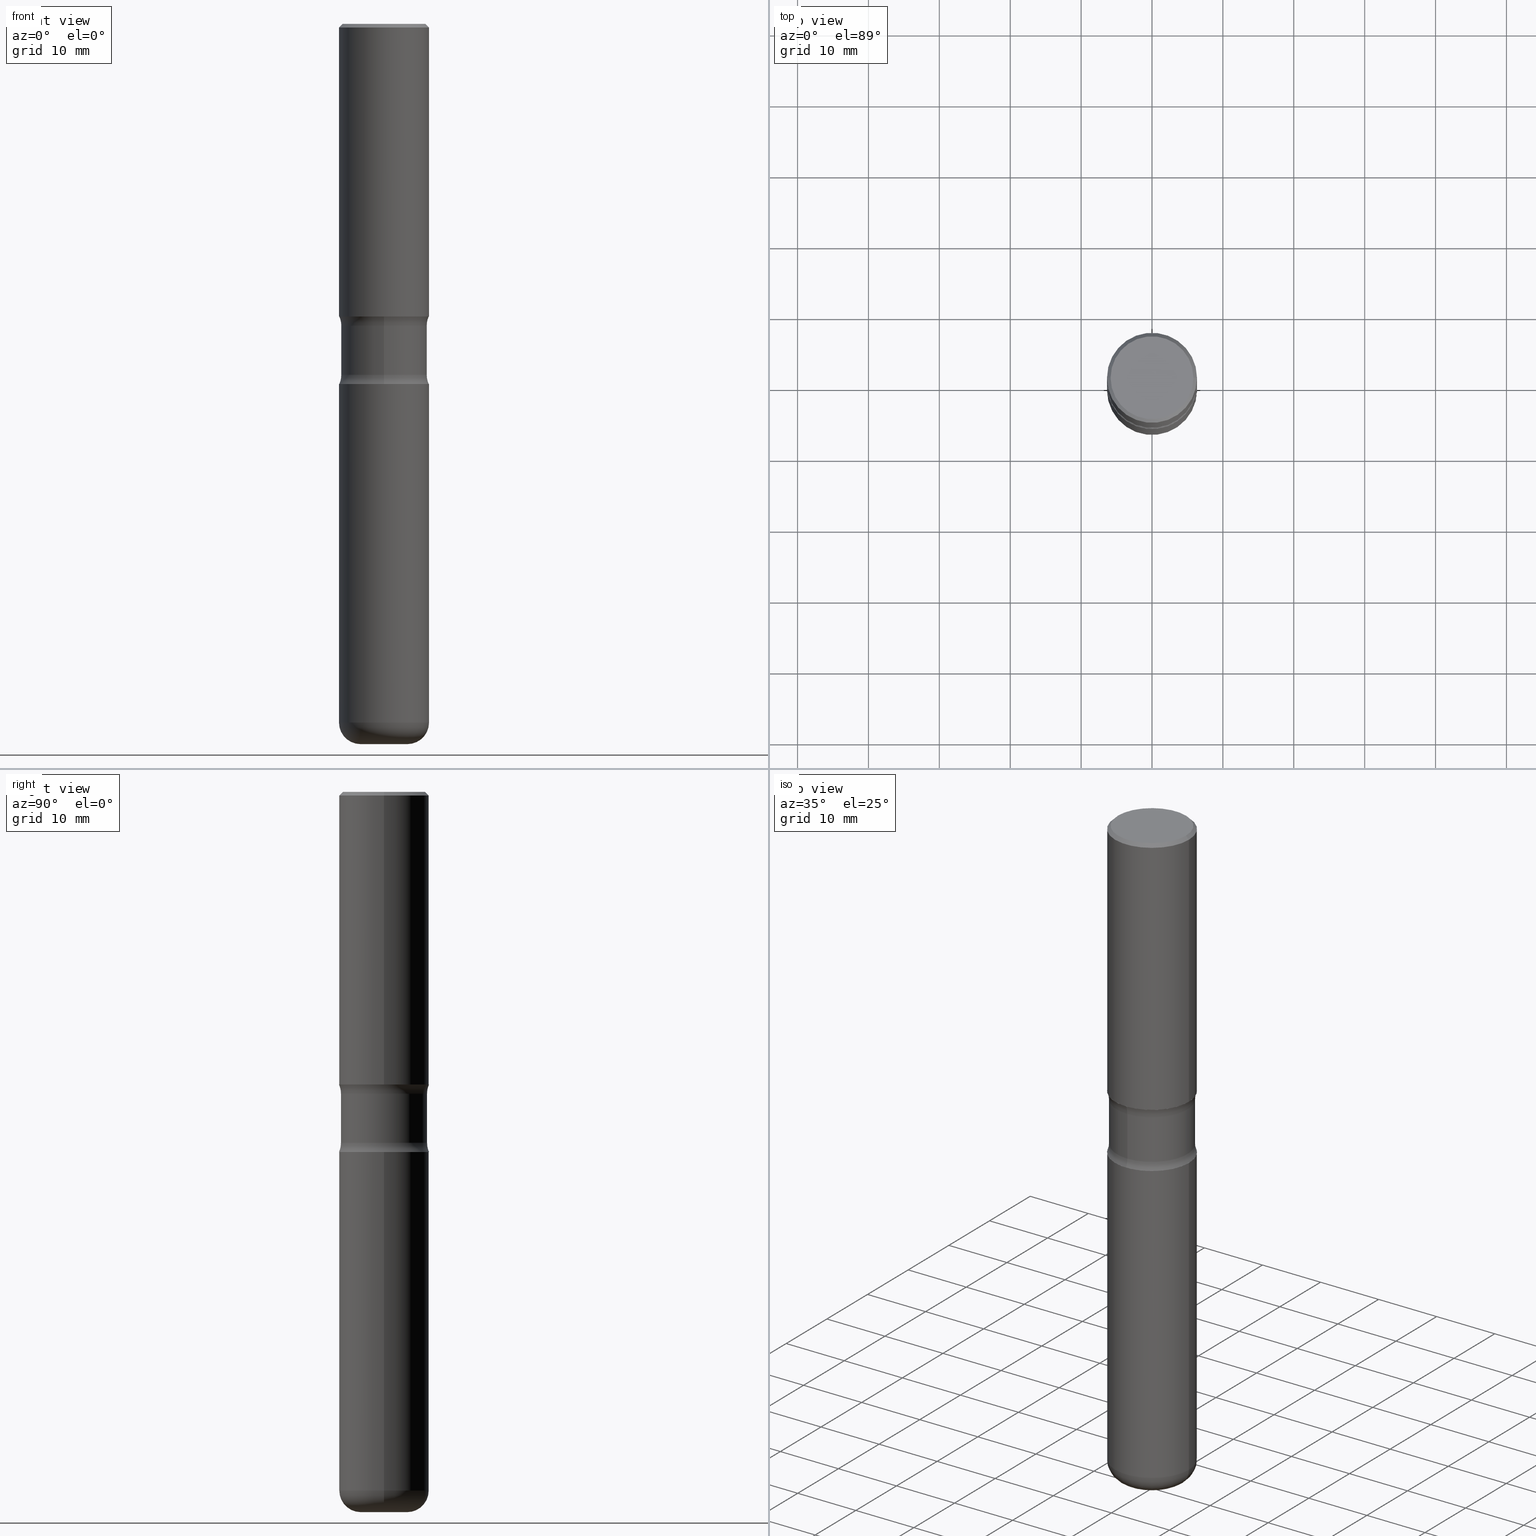
[diagram: canonical four-view strip — front | top / right | iso, engineering-drawing reading convention]
A machine part, canonical four-view strip (front | top / right | iso — engineering-drawing reading convention). The complete STEP part file that produces these views, byte-faithful:
ISO-10303-21;
HEADER;
FILE_DESCRIPTION (( 'STEP AP203' ),
    '1' );
FILE_NAME ('34023.STEP',
    '2024-03-01T22:58:10',
    ( '' ),
    ( '' ),
    'SwSTEP 2.0',
    'SolidWorks 2023',
    '' );
FILE_SCHEMA (( 'CONFIG_CONTROL_DESIGN' ));
ENDSEC;

DATA;
#1 = PERSON_AND_ORGANIZATION ( #354, #500 ) ;
#2 = EDGE_LOOP ( 'NONE', ( #245, #204, #390, #119 ) ) ;
#3 = AXIS2_PLACEMENT_3D ( 'NONE', #468, #429, #332 ) ;
#4 = DESIGN_CONTEXT ( 'detailed design', #397, 'design' ) ;
#5 = DIRECTION ( 'NONE',  ( -0.7071067811865473507, 2.468850131082255088E-15, -0.7071067811865476838 ) ) ;
#6 = DIRECTION ( 'NONE',  ( 2.475275669592745562E-29, -3.448796213942141316E-15, -1.000000000000000000 ) ) ;
#7 = FACE_OUTER_BOUND ( 'NONE', #340, .T. ) ;
#8 = CIRCLE ( 'NONE', #77, 0.2500000000000005551 ) ;
#9 = CARTESIAN_POINT ( 'NONE',  ( 9.841488951555764877E-29, -1.388055510557057537E-14, -4.000000000000000888 ) ) ;
#10 = VECTOR ( 'NONE', #143, 39.37007874015748143 ) ;
#11 = AXIS2_PLACEMENT_3D ( 'NONE', #319, #61, #360 ) ;
#12 = DATE_AND_TIME ( #493, #426 ) ;
#13 = LINE ( 'NONE', #488, #369 ) ;
#14 = ORIENTED_EDGE ( 'NONE', *, *, #162, .F. ) ;
#15 = FACE_OUTER_BOUND ( 'NONE', #404, .T. ) ;
#16 = DIRECTION ( 'NONE',  ( 1.000000000000000000, -6.982962677686268288E-15, 0.000000000000000000 ) ) ;
#17 = EDGE_LOOP ( 'NONE', ( #151, #517, #329, #472 ) ) ;
#18 = AXIS2_PLACEMENT_3D ( 'NONE', #412, #145, #366 ) ;
#19 = CC_DESIGN_APPROVAL ( #141, ( #261 ) ) ;
#20 = CARTESIAN_POINT ( 'NONE',  ( 4.890937612370306439E-31, -6.982962677686338448E-17, -0.02000000000000013572 ) ) ;
#21 = ORIENTED_EDGE ( 'NONE', *, *, #57, .T. ) ;
#22 = PLANE ( 'NONE',  #190 ) ;
#23 = ADVANCED_BREP_SHAPE_REPRESENTATION ( '34023', ( #186, #199, #191, #398 ), #538 ) ;
#24 = DIRECTION ( 'NONE',  ( 1.000000000000000000, -6.982962677686272233E-15, 0.000000000000000000 ) ) ;
#25 = LINE ( 'NONE', #311, #182 ) ;
#26 = ORIENTED_EDGE ( 'NONE', *, *, #124, .T. ) ;
#27 = CC_DESIGN_PERSON_AND_ORGANIZATION_ASSIGNMENT ( #92, #351, ( #328 ) ) ;
#28 = DIRECTION ( 'NONE',  ( 7.105427357601001859E-15, 1.000000000000000000, -3.491481338843145583E-15 ) ) ;
#29 = FACE_OUTER_BOUND ( 'NONE', #115, .T. ) ;
#30 = EDGE_LOOP ( 'NONE', ( #194, #257 ) ) ;
#31 = ORIENTED_EDGE ( 'NONE', *, *, #86, .T. ) ;
#32 = CIRCLE ( 'NONE', #545, 0.2500000000000004996 ) ;
#33 = LINE ( 'NONE', #71, #201 ) ;
#34 = ORIENTED_EDGE ( 'NONE', *, *, #271, .F. ) ;
#35 = APPROVAL_PERSON_ORGANIZATION ( #389, #415, #44 ) ;
#36 = DIRECTION ( 'NONE',  ( -2.445468806185136597E-29, 3.491481338843145583E-15, 1.000000000000000000 ) ) ;
#37 = ORIENTED_EDGE ( 'NONE', *, *, #228, .F. ) ;
#38 = ORIENTED_EDGE ( 'NONE', *, *, #402, .T. ) ;
#39 = APPROVAL_DATE_TIME ( #431, #141 ) ;
#40 = DIRECTION ( 'NONE',  ( 2.445468806185136597E-29, -3.491481338843145583E-15, -1.000000000000000000 ) ) ;
#41 = DIRECTION ( 'NONE',  ( 2.445468806185136597E-29, -3.491481338843145583E-15, -1.000000000000000000 ) ) ;
#42 = EDGE_LOOP ( 'NONE', ( #428, #31, #238, #430 ) ) ;
#43 = CIRCLE ( 'NONE', #359, 0.2500000000000004996 ) ;
#44 = APPROVAL_ROLE ( '' ) ;
#45 = AXIS2_PLACEMENT_3D ( 'NONE', #498, #528, #127 ) ;
#46 = CARTESIAN_POINT ( 'NONE',  ( -0.2500000000000003331, 1.675911042644705746E-15, -0.02000000000000013572 ) ) ;
#47 = PLANE ( 'NONE',  #378 ) ;
#48 = PERSON_AND_ORGANIZATION ( #354, #500 ) ;
#49 = DIRECTION ( 'NONE',  ( -2.445468806185136877E-29, 3.491481338843145188E-15, 1.000000000000000000 ) ) ;
#50 = EDGE_CURVE ( 'NONE', #512, #364, #8, .T. ) ;
#51 = CALENDAR_DATE ( 2024, 1, 3 ) ;
#52 = ORIENTED_EDGE ( 'NONE', *, *, #535, .T. ) ;
#53 = DIRECTION ( 'NONE',  ( 1.000000000000000000, -6.982962677686266711E-15, 0.000000000000000000 ) ) ;
#54 = DIRECTION ( 'NONE',  ( -1.000000000000000000, 6.982962677686265922E-15, -4.883557194083112340E-29 ) ) ;
#55 = CARTESIAN_POINT ( 'NONE',  ( 0.2300000000000002320, -1.681434332853601180E-15, -3.414809992079179628E-17 ) ) ;
#56 = CIRCLE ( 'NONE', #490, 0.1250000000000000555 ) ;
#57 = EDGE_CURVE ( 'NONE', #361, #64, #43, .T. ) ;
#58 = FACE_OUTER_BOUND ( 'NONE', #30, .T. ) ;
#59 = DIRECTION ( 'NONE',  ( 1.000000000000000000, -6.982962677686269866E-15, 0.000000000000000000 ) ) ;
#60 = ORIENTED_EDGE ( 'NONE', *, *, #72, .T. ) ;
#61 = DIRECTION ( 'NONE',  ( -2.445468806185136597E-29, 3.491481338843145583E-15, 1.000000000000000000 ) ) ;
#62 = AXIS2_PLACEMENT_3D ( 'NONE', #89, #54, #308 ) ;
#63 = AXIS2_PLACEMENT_3D ( 'NONE', #206, #36, #555 ) ;
#64 = VERTEX_POINT ( 'NONE', #154 ) ;
#65 = PLANE ( 'NONE',  #219 ) ;
#66 = FACE_OUTER_BOUND ( 'NONE', #217, .T. ) ;
#67 = ORIENTED_EDGE ( 'NONE', *, *, #437, .F. ) ;
#68 = DIRECTION ( 'NONE',  ( 2.475275669592745842E-29, -3.448796213942141316E-15, -1.000000000000000000 ) ) ;
#69 = CLOSED_SHELL ( 'NONE', ( #522, #284, #134, #435, #318, #539 ) ) ;
#70 = TOROIDAL_SURFACE ( 'NONE', #45, 0.1300000000000006151, 0.1199999999999999123 ) ;
#71 = CARTESIAN_POINT ( 'NONE',  ( -1.639659021467298523E-15, -0.2390000000000140346, -3.999999999999999556 ) ) ;
#72 = EDGE_CURVE ( 'NONE', #207, #510, #75, .T. ) ;
#73 = CARTESIAN_POINT ( 'NONE',  ( 0.000000000000000000, 0.000000000000000000, 0.000000000000000000 ) ) ;
#74 = ORIENTED_EDGE ( 'NONE', *, *, #476, .T. ) ;
#75 = LINE ( 'NONE', #324, #180 ) ;
#76 = CARTESIAN_POINT ( 'NONE',  ( 0.000000000000000000, 0.000000000000000000, 0.000000000000000000 ) ) ;
#77 = AXIS2_PLACEMENT_3D ( 'NONE', #553, #551, #109 ) ;
#78 = VECTOR ( 'NONE', #91, 39.37007874015748143 ) ;
#79 = APPROVAL_PERSON_ORGANIZATION ( #118, #141, #344 ) ;
#80 = FACE_OUTER_BOUND ( 'NONE', #272, .T. ) ;
#81 = APPROVAL_STATUS ( 'not_yet_approved' ) ;
#82 = EDGE_LOOP ( 'NONE', ( #297, #60, #387, #169 ) ) ;
#83 = DIRECTION ( 'NONE',  ( -1.000000000000000000, 6.982962677686266711E-15, 0.000000000000000000 ) ) ;
#84 = PERSON_AND_ORGANIZATION_ROLE ( 'creator' ) ;
#85 = TOROIDAL_SURFACE ( 'NONE', #405, 0.1300000000000006151, 0.1199999999999999123 ) ;
#86 = EDGE_CURVE ( 'NONE', #457, #347, #157, .T. ) ;
#87 = DIRECTION ( 'NONE',  ( -2.445468806185136597E-29, 3.491481338843145583E-15, 1.000000000000000000 ) ) ;
#88 = ADVANCED_FACE ( 'NONE', ( #473 ), #470, .T. ) ;
#89 = CARTESIAN_POINT ( 'NONE',  ( 2.541798414677849219E-15, 0.3639999999999933289, -1.948726225026823800 ) ) ;
#90 = COORDINATED_UNIVERSAL_TIME_OFFSET ( 5, 0, .BEHIND. ) ;
#91 = DIRECTION ( 'NONE',  ( -2.445468806185136877E-29, 3.491481338843145188E-15, 1.000000000000000000 ) ) ;
#92 = PERSON_AND_ORGANIZATION ( #354, #500 ) ;
#93 = CARTESIAN_POINT ( 'NONE',  ( -0.2300000000000002320, 1.640996229256274294E-15, -3.414809992081464243E-17 ) ) ;
#94 = DIRECTION ( 'NONE',  ( -2.445468806185136597E-29, 3.491481338843145583E-15, 1.000000000000000000 ) ) ;
#95 = AXIS2_PLACEMENT_3D ( 'NONE', #494, #212, #356 ) ;
#96 = CARTESIAN_POINT ( 'NONE',  ( -0.2500000000000004996, -8.488598296798597572E-15, -2.000000000000000444 ) ) ;
#97 = ORIENTED_EDGE ( 'NONE', *, *, #357, .F. ) ;
#98 = CARTESIAN_POINT ( 'NONE',  ( -1.369676179786816518E-28, -4.758866989277877228E-14, -4.000000000000000888 ) ) ;
#99 = ORIENTED_EDGE ( 'NONE', *, *, #72, .F. ) ;
#100 = CARTESIAN_POINT ( 'NONE',  ( 0.2500000000000005551, -7.419397845041682046E-15, -1.624999999999999778 ) ) ;
#101 = CC_DESIGN_DATE_AND_TIME_ASSIGNMENT ( #214, #208, ( #328 ) ) ;
#102 = TOROIDAL_SURFACE ( 'NONE', #95, 0.3640000000000000457, 0.1250000000000000555 ) ;
#103 = DIRECTION ( 'NONE',  ( -2.445468806185136597E-29, 3.491481338843145583E-15, 1.000000000000000000 ) ) ;
#104 =( NAMED_UNIT ( * ) PLANE_ANGLE_UNIT ( ) SI_UNIT ( $, .RADIAN. ) );
#105 = VERTEX_POINT ( 'NONE', #451 ) ;
#106 = PRODUCT_DEFINITION ( 'UNKNOWN', '', #261, #4 ) ;
#107 =( NAMED_UNIT ( * ) SI_UNIT ( $, .STERADIAN. ) SOLID_ANGLE_UNIT ( ) );
#108 = CONICAL_SURFACE ( 'NONE', #425, 0.2500000000000003331, 0.7853981633974480570 ) ;
#109 = DIRECTION ( 'NONE',  ( 1.000000000000000000, -6.982962677686266711E-15, 0.000000000000000000 ) ) ;
#110 = LOCAL_TIME ( 17, 58, 10.00000000000000000, #338 ) ;
#111 = CARTESIAN_POINT ( 'NONE',  ( 4.089625963952275315E-29, -5.866496898460006191E-15, -1.676273774973178199 ) ) ;
#112 = DIRECTION ( 'NONE',  ( 1.000000000000000000, -6.982962677686265922E-15, 4.876176775795935232E-29 ) ) ;
#113 = ORIENTED_EDGE ( 'NONE', *, *, #168, .T. ) ;
#114 =( LENGTH_UNIT ( ) NAMED_UNIT ( * ) SI_UNIT ( $, .METRE. ) );
#115 = EDGE_LOOP ( 'NONE', ( #459, #298 ) ) ;
#116 = AXIS2_PLACEMENT_3D ( 'NONE', #358, #181, #536 ) ;
#117 = CARTESIAN_POINT ( 'NONE',  ( -2.497221271188790652E-15, -0.3640000000000069846, -1.948726225026821135 ) ) ;
#118 = PERSON_AND_ORGANIZATION ( #354, #500 ) ;
#119 = ORIENTED_EDGE ( 'NONE', *, *, #205, .T. ) ;
#120 = SHAPE_DEFINITION_REPRESENTATION ( #320, #23 ) ;
#121 = EDGE_CURVE ( 'NONE', #195, #156, #128, .T. ) ;
#122 = DIRECTION ( 'NONE',  ( -2.445468806185136597E-29, 3.491481338843145583E-15, 1.000000000000000000 ) ) ;
#123 = ORIENTED_EDGE ( 'NONE', *, *, #307, .F. ) ;
#124 = EDGE_CURVE ( 'NONE', #374, #247, #229, .T. ) ;
#125 = ADVANCED_FACE ( 'NONE', ( #523 ), #477, .F. ) ;
#126 = EDGE_CURVE ( 'NONE', #193, #105, #368, .T. ) ;
#127 = DIRECTION ( 'NONE',  ( 1.000000000000000000, -6.982962677686263555E-15, 4.883557194083111780E-29 ) ) ;
#128 = CIRCLE ( 'NONE', #489, 0.2390000000000002123 ) ;
#129 = DIRECTION ( 'NONE',  ( 0.000000000000000000, 0.000000000000000000, 1.000000000000000000 ) ) ;
#130 = CIRCLE ( 'NONE', #396, 0.1300000000000006151 ) ;
#131 = DIRECTION ( 'NONE',  ( 2.475275669592745562E-29, -3.448796213942141316E-15, -1.000000000000000000 ) ) ;
#132 = CYLINDRICAL_SURFACE ( 'NONE', #309, 0.2500000000000005551 ) ;
#133 = CARTESIAN_POINT ( 'NONE',  ( 0.2500000000000004996, -1.745740669421570030E-15, 1.219044193948986190E-29 ) ) ;
#134 = ADVANCED_FACE ( 'NONE', ( #223 ), #447, .T. ) ;
#135 = CARTESIAN_POINT ( 'NONE',  ( 9.841488951555764877E-29, -1.388055510557057537E-14, -4.000000000000000888 ) ) ;
#136 = AXIS2_PLACEMENT_3D ( 'NONE', #507, #270, #179 ) ;
#137 = ORIENTED_EDGE ( 'NONE', *, *, #241, .T. ) ;
#138 = CYLINDRICAL_SURFACE ( 'NONE', #301, 0.2390000000000001568 ) ;
#139 = VERTEX_POINT ( 'NONE', #384 ) ;
#140 = CARTESIAN_POINT ( 'NONE',  ( -1.677391760455101849E-15, -0.2390000000000060687, -1.676273774973177533 ) ) ;
#141 = APPROVAL ( #81, 'UNSPECIFIED' ) ;
#142 = CC_DESIGN_DATE_AND_TIME_ASSIGNMENT ( #483, #520, ( #106 ) ) ;
#143 = DIRECTION ( 'NONE',  ( 2.475275669592745842E-29, -3.448796213942141316E-15, -1.000000000000000000 ) ) ;
#144 = EDGE_CURVE ( 'NONE', #139, #475, #300, .T. ) ;
#145 = DIRECTION ( 'NONE',  ( -2.475275669592745281E-29, 3.448796213942141316E-15, 1.000000000000000000 ) ) ;
#146 = AXIS2_PLACEMENT_3D ( 'NONE', #546, #314, #24 ) ;
#147 = TOROIDAL_SURFACE ( 'NONE', #479, 0.3640000000000001568, 0.1250000000000000000 ) ;
#148 = CC_DESIGN_SECURITY_CLASSIFICATION ( #328, ( #261 ) ) ;
#149 = FACE_OUTER_BOUND ( 'NONE', #449, .T. ) ;
#150 = ADVANCED_FACE ( 'NONE', ( #495 ), #47, .F. ) ;
#151 = ORIENTED_EDGE ( 'NONE', *, *, #485, .T. ) ;
#152 = FACE_OUTER_BOUND ( 'NONE', #2, .T. ) ;
#153 = ORIENTED_EDGE ( 'NONE', *, *, #183, .F. ) ;
#154 = CARTESIAN_POINT ( 'NONE',  ( 1.745740669421610459E-15, 0.2499999999999948652, -1.625000000000000888 ) ) ;
#155 = DIRECTION ( 'NONE',  ( 6.982962677686265133E-15, 1.000000000000000000, -3.278217592397109157E-15 ) ) ;
#156 = VERTEX_POINT ( 'NONE', #140 ) ;
#157 = CIRCLE ( 'NONE', #395, 0.1199999999999999262 ) ;
#158 = CIRCLE ( 'NONE', #554, 0.2500000000000004996 ) ;
#159 = CARTESIAN_POINT ( 'NONE',  ( 3.962709236272992942E-29, -5.689664097457987531E-15, -1.624999999999999778 ) ) ;
#160 = ORIENTED_EDGE ( 'NONE', *, *, #516, .F. ) ;
#161 = CARTESIAN_POINT ( 'NONE',  ( 1.668928079967066472E-15, 0.2389999999999934122, -1.948726225026823355 ) ) ;
#162 = EDGE_CURVE ( 'NONE', #457, #374, #267, .T. ) ;
#163 = ORIENTED_EDGE ( 'NONE', *, *, #144, .F. ) ;
#164 = CARTESIAN_POINT ( 'NONE',  ( 4.890937612370274875E-29, -6.982962677686292743E-15, -2.000000000000000444 ) ) ;
#165 = CIRCLE ( 'NONE', #379, 0.2500000000000005551 ) ;
#166 = APPLICATION_PROTOCOL_DEFINITION ( 'international standard', 'config_control_design', 1994, #397 ) ;
#167 = CARTESIAN_POINT ( 'NONE',  ( 3.973886810050846409E-29, -5.673657175620110635E-15, -1.624999999999999778 ) ) ;
#168 = EDGE_CURVE ( 'NONE', #105, #475, #200, .T. ) ;
#169 = ORIENTED_EDGE ( 'NONE', *, *, #242, .F. ) ;
#170 = ORIENTED_EDGE ( 'NONE', *, *, #50, .T. ) ;
#171 = DIRECTION ( 'NONE',  ( 6.982962677686265922E-15, 1.000000000000000000, -3.448796213942141316E-15 ) ) ;
#172 = CARTESIAN_POINT ( 'NONE',  ( 1.668928079967059964E-15, 0.2389999999999943281, -1.676273774973179087 ) ) ;
#173 = COORDINATED_UNIVERSAL_TIME_OFFSET ( 5, 0, .BEHIND. ) ;
#174 = CIRCLE ( 'NONE', #448, 0.2500000000000006106 ) ;
#175 = DIRECTION ( 'NONE',  ( 6.982962677686265133E-15, 1.000000000000000000, -3.429097899996980271E-15 ) ) ;
#176 = PERSON_AND_ORGANIZATION_ROLE ( 'creator' ) ;
#177 = CARTESIAN_POINT ( 'NONE',  ( 4.890937612370306439E-31, -6.982962677686338448E-17, -0.02000000000000013572 ) ) ;
#178 = ADVANCED_FACE ( 'NONE', ( #215 ), #388, .T. ) ;
#179 = DIRECTION ( 'NONE',  ( 1.000000000000000000, -6.982962677686266711E-15, 4.875813741439094729E-29 ) ) ;
#180 = VECTOR ( 'NONE', #287, 39.37007874015748143 ) ;
#181 = DIRECTION ( 'NONE',  ( -2.445468806185136597E-29, 3.491481338843145583E-15, 1.000000000000000000 ) ) ;
#182 = VECTOR ( 'NONE', #278, 39.37007874015748143 ) ;
#183 = EDGE_CURVE ( 'NONE', #156, #195, #349, .T. ) ;
#184 = ADVANCED_FACE ( 'NONE', ( #7 ), #537, .F. ) ;
#185 = FACE_OUTER_BOUND ( 'NONE', #518, .T. ) ;
#186 = MANIFOLD_SOLID_BREP ( 'Body-Move/Copy2[1]', #519 ) ;
#187 = DIRECTION ( 'NONE',  ( -2.445468806185136597E-29, 3.491481338843145583E-15, 1.000000000000000000 ) ) ;
#188 = PRODUCT ( '34023', '34023', '', ( #443 ) ) ;
#189 = CARTESIAN_POINT ( 'NONE',  ( 9.781875224740550871E-29, -1.396592535537258864E-14, -4.000000000000001776 ) ) ;
#190 = AXIS2_PLACEMENT_3D ( 'NONE', #362, #461, #273 ) ;
#191 = MANIFOLD_SOLID_BREP ( 'Body-Move/Copy2[4]', #326 ) ;
#192 = CARTESIAN_POINT ( 'NONE',  ( -0.2500000000000005551, -1.095386561798230783E-15, -1.624999999999999778 ) ) ;
#193 = VERTEX_POINT ( 'NONE', #305 ) ;
#194 = ORIENTED_EDGE ( 'NONE', *, *, #285, .T. ) ;
#195 = VERTEX_POINT ( 'NONE', #172 ) ;
#196 = DIRECTION ( 'NONE',  ( 1.000000000000000000, -6.982962677686266711E-15, 4.876176775795935232E-29 ) ) ;
#197 = DIRECTION ( 'NONE',  ( 6.982962677686265922E-15, 1.000000000000000000, -3.278217592397109157E-15 ) ) ;
#198 = CARTESIAN_POINT ( 'NONE',  ( 0.2500000000000004996, -8.728703347107863365E-15, -2.000000000000000444 ) ) ;
#199 = MANIFOLD_SOLID_BREP ( 'Body-Move/Copy2[2]', #69 ) ;
#200 = CIRCLE ( 'NONE', #531, 0.2390000000000002123 ) ;
#201 = VECTOR ( 'NONE', #68, 39.37007874015748143 ) ;
#202 = ORIENTED_EDGE ( 'NONE', *, *, #183, .T. ) ;
#203 = EDGE_CURVE ( 'NONE', #510, #337, #521, .T. ) ;
#204 = ORIENTED_EDGE ( 'NONE', *, *, #476, .F. ) ;
#205 = EDGE_CURVE ( 'NONE', #475, #105, #293, .T. ) ;
#206 = CARTESIAN_POINT ( 'NONE',  ( 9.488418967998333448E-29, -1.354694759471141201E-14, -3.880000000000001670 ) ) ;
#207 = VERTEX_POINT ( 'NONE', #55 ) ;
#208 = DATE_TIME_ROLE ( 'classification_date' ) ;
#209 = CC_DESIGN_PERSON_AND_ORGANIZATION_ASSIGNMENT ( #1, #440, ( #261 ) ) ;
#210 = DIRECTION ( 'NONE',  ( -1.000000000000000000, 6.982962677686266711E-15, 0.000000000000000000 ) ) ;
#211 = AXIS2_PLACEMENT_3D ( 'NONE', #9, #533, #299 ) ;
#212 = DIRECTION ( 'NONE',  ( 2.475275669592745562E-29, -3.448796213942141316E-15, -1.000000000000000000 ) ) ;
#213 = DIRECTION ( 'NONE',  ( 2.438088387897960049E-29, -3.491481338843145188E-15, -1.000000000000000000 ) ) ;
#214 = DATE_AND_TIME ( #399, #110 ) ;
#215 = FACE_OUTER_BOUND ( 'NONE', #484, .T. ) ;
#216 = SECURITY_CLASSIFICATION_LEVEL ( 'unclassified' ) ;
#217 = EDGE_LOOP ( 'NONE', ( #557, #482, #26, #123 ) ) ;
#218 = DIRECTION ( 'NONE',  ( 6.860497997771530774E-15, 1.000000000000000000, 0.000000000000000000 ) ) ;
#219 = AXIS2_PLACEMENT_3D ( 'NONE', #225, #274, #453 ) ;
#220 = CALENDAR_DATE ( 2024, 1, 3 ) ;
#221 = ADVANCED_FACE ( 'NONE', ( #258 ), #132, .T. ) ;
#222 = CARTESIAN_POINT ( 'NONE',  ( 2.541798414677842119E-15, 0.3639999999999942171, -1.676273774973179753 ) ) ;
#223 = FACE_OUTER_BOUND ( 'NONE', #543, .T. ) ;
#224 = ADVANCED_FACE ( 'NONE', ( #303 ), #102, .F. ) ;
#225 = CARTESIAN_POINT ( 'NONE',  ( 1.606081415867843039E-15, 0.2300000000000002320, -8.201147578943259875E-16 ) ) ;
#226 = FACE_OUTER_BOUND ( 'NONE', #239, .T. ) ;
#227 = EDGE_CURVE ( 'NONE', #156, #361, #268, .T. ) ;
#228 = EDGE_CURVE ( 'NONE', #364, #510, #492, .T. ) ;
#229 = CIRCLE ( 'NONE', #146, 0.1199999999999999262 ) ;
#230 = DIRECTION ( 'NONE',  ( 6.982962677686266711E-15, 1.000000000000000000, -4.572130533329308080E-15 ) ) ;
#231 = CIRCLE ( 'NONE', #11, 0.2500000000000004996 ) ;
#232 = PLANE ( 'NONE',  #18 ) ;
#233 = DIRECTION ( 'NONE',  ( 6.982962677686265922E-15, 1.000000000000000000, -3.278217592397109157E-15 ) ) ;
#234 = DIRECTION ( 'NONE',  ( 2.475275669592745562E-29, -3.448796213942141316E-15, -1.000000000000000000 ) ) ;
#235 = AXIS2_PLACEMENT_3D ( 'NONE', #20, #380, #291 ) ;
#236 = EDGE_LOOP ( 'NONE', ( #552, #170, #487, #67 ) ) ;
#237 = APPROVAL_PERSON_ORGANIZATION ( #486, #323, #491 ) ;
#238 = ORIENTED_EDGE ( 'NONE', *, *, #485, .F. ) ;
#239 = EDGE_LOOP ( 'NONE', ( #97, #14 ) ) ;
#240 = VERTEX_POINT ( 'NONE', #93 ) ;
#241 = EDGE_CURVE ( 'NONE', #195, #64, #56, .T. ) ;
#242 = EDGE_CURVE ( 'NONE', #240, #337, #345, .T. ) ;
#243 = ORIENTED_EDGE ( 'NONE', *, *, #121, .T. ) ;
#244 = DIRECTION ( 'NONE',  ( 2.475275669592745562E-29, -3.448796213942141316E-15, -1.000000000000000000 ) ) ;
#245 = ORIENTED_EDGE ( 'NONE', *, *, #126, .F. ) ;
#246 = DIRECTION ( 'NONE',  ( 6.982962677686265133E-15, 1.000000000000000000, -3.278217592397109157E-15 ) ) ;
#247 = VERTEX_POINT ( 'NONE', #400 ) ;
#248 = CIRCLE ( 'NONE', #350, 0.2500000000000004996 ) ;
#249 = AXIS2_PLACEMENT_3D ( 'NONE', #534, #432, #218 ) ;
#250 = CARTESIAN_POINT ( 'NONE',  ( 4.890937612370274875E-29, -6.982962677686292743E-15, -2.000000000000000444 ) ) ;
#251 = ORIENTED_EDGE ( 'NONE', *, *, #373, .T. ) ;
#252 = DIRECTION ( 'NONE',  ( -2.445468806185136597E-29, 3.491481338843145583E-15, 1.000000000000000000 ) ) ;
#253 = ADVANCED_FACE ( 'NONE', ( #306 ), #70, .T. ) ;
#254 = EDGE_CURVE ( 'NONE', #347, #382, #13, .T. ) ;
#255 = COORDINATED_UNIVERSAL_TIME_OFFSET ( 5, 0, .BEHIND. ) ;
#256 = ORIENTED_EDGE ( 'NONE', *, *, #242, .T. ) ;
#257 = ORIENTED_EDGE ( 'NONE', *, *, #346, .T. ) ;
#258 = FACE_OUTER_BOUND ( 'NONE', #496, .T. ) ;
#259 = AXIS2_PLACEMENT_3D ( 'NONE', #117, #422, #427 ) ;
#260 = CIRCLE ( 'NONE', #116, 0.2300000000000002320 ) ;
#261 = PRODUCT_DEFINITION_FORMATION_WITH_SPECIFIED_SOURCE ( 'ANY', '', #188, .NOT_KNOWN. ) ;
#262 = DIRECTION ( 'NONE',  ( 1.000000000000000000, -6.982962677686266711E-15, 0.000000000000000000 ) ) ;
#263 = APPROVAL_DATE_TIME ( #434, #323 ) ;
#264 = DIRECTION ( 'NONE',  ( -1.000000000000000000, 6.982962677686265922E-15, -4.883557194083112340E-29 ) ) ;
#265 = COORDINATED_UNIVERSAL_TIME_OFFSET ( 5, 0, .BEHIND. ) ;
#266 = DIRECTION ( 'NONE',  ( 6.982962677686265133E-15, 1.000000000000000000, -3.429097899996980271E-15 ) ) ;
#267 = CIRCLE ( 'NONE', #454, 0.1300000000000006151 ) ;
#268 = CIRCLE ( 'NONE', #249, 0.1250000000000000555 ) ;
#269 = CC_DESIGN_APPROVAL ( #323, ( #106 ) ) ;
#270 = DIRECTION ( 'NONE',  ( -2.445468806185136597E-29, 3.491481338843145583E-15, 1.000000000000000000 ) ) ;
#271 = EDGE_CURVE ( 'NONE', #364, #512, #165, .T. ) ;
#272 = EDGE_LOOP ( 'NONE', ( #549, #251, #288, #37 ) ) ;
#273 = DIRECTION ( 'NONE',  ( 1.000000000000000000, -6.982962677686265922E-15, 4.876176775795935793E-29 ) ) ;
#274 = DIRECTION ( 'NONE',  ( 2.438088387897960049E-29, -3.491481338843145188E-15, -1.000000000000000000 ) ) ;
#275 = CARTESIAN_POINT ( 'NONE',  ( 3.962709236272992942E-29, -5.689664097457987531E-15, -1.624999999999999778 ) ) ;
#276 = AXIS2_PLACEMENT_3D ( 'NONE', #471, #322, #112 ) ;
#277 = CC_DESIGN_APPROVAL ( #415, ( #328 ) ) ;
#278 = DIRECTION ( 'NONE',  ( -2.445468806185136877E-29, 3.491481338843145188E-15, 1.000000000000000000 ) ) ;
#279 = DIRECTION ( 'NONE',  ( 2.475275669592745562E-29, -3.448796213942141316E-15, -1.000000000000000000 ) ) ;
#280 = DIRECTION ( 'NONE',  ( 1.000000000000000000, -6.982962677686265922E-15, 4.876176775795935232E-29 ) ) ;
#281 = AXIS2_PLACEMENT_3D ( 'NONE', #446, #6, #348 ) ;
#282 = DIRECTION ( 'NONE',  ( 2.475275669592745562E-29, -3.448796213942141316E-15, -1.000000000000000000 ) ) ;
#283 = DIRECTION ( 'NONE',  ( 6.982962677686265922E-15, 1.000000000000000000, -3.448796213942141316E-15 ) ) ;
#284 = ADVANCED_FACE ( 'NONE', ( #444 ), #108, .T. ) ;
#285 = EDGE_CURVE ( 'NONE', #240, #207, #260, .T. ) ;
#286 = ORIENTED_EDGE ( 'NONE', *, *, #205, .F. ) ;
#287 = DIRECTION ( 'NONE',  ( 0.7071067811865473507, -7.319954787623256045E-15, -0.7071067811865476838 ) ) ;
#288 = ORIENTED_EDGE ( 'NONE', *, *, #203, .F. ) ;
#289 = CARTESIAN_POINT ( 'NONE',  ( 4.765549195098011241E-29, -6.803941249195398607E-15, -1.948726225026822467 ) ) ;
#290 = LENGTH_MEASURE_WITH_UNIT ( LENGTH_MEASURE( 0.02539999999999999897 ), #114 );
#291 = DIRECTION ( 'NONE',  ( 1.000000000000000000, -6.982962677686266711E-15, 0.000000000000000000 ) ) ;
#292 = ORIENTED_EDGE ( 'NONE', *, *, #121, .F. ) ;
#293 = CIRCLE ( 'NONE', #327, 0.2390000000000002123 ) ;
#294 = LOCAL_TIME ( 17, 58, 10.00000000000000000, #255 ) ;
#295 = ORIENTED_EDGE ( 'NONE', *, *, #50, .F. ) ;
#296 = CALENDAR_DATE ( 2024, 1, 3 ) ;
#297 = ORIENTED_EDGE ( 'NONE', *, *, #346, .F. ) ;
#298 = ORIENTED_EDGE ( 'NONE', *, *, #57, .F. ) ;
#299 = DIRECTION ( 'NONE',  ( 6.982962677686266711E-15, 1.000000000000000000, -4.572130533329308080E-15 ) ) ;
#300 = CIRCLE ( 'NONE', #62, 0.1250000000000000000 ) ;
#301 = AXIS2_PLACEMENT_3D ( 'NONE', #135, #503, #230 ) ;
#302 = PERSON_AND_ORGANIZATION_ROLE ( 'design_owner' ) ;
#303 = FACE_OUTER_BOUND ( 'NONE', #342, .T. ) ;
#304 = EDGE_CURVE ( 'NONE', #474, #382, #231, .T. ) ;
#305 = CARTESIAN_POINT ( 'NONE',  ( -1.715124499442837334E-15, -0.2500000000000074940, -1.999999999999999334 ) ) ;
#306 = FACE_OUTER_BOUND ( 'NONE', #42, .T. ) ;
#307 = EDGE_CURVE ( 'NONE', #347, #247, #174, .T. ) ;
#308 = DIRECTION ( 'NONE',  ( -6.982962677686266711E-15, -1.000000000000000000, 0.000000000000000000 ) ) ;
#309 = AXIS2_PLACEMENT_3D ( 'NONE', #441, #122, #525 ) ;
#310 = ADVANCED_FACE ( 'NONE', ( #149 ), #232, .F. ) ;
#311 = CARTESIAN_POINT ( 'NONE',  ( -0.2500000000000004996, 1.776356839400254015E-15, -1.229733772563728688E-29 ) ) ;
#312 = PLANE ( 'NONE',  #334 ) ;
#313 = CARTESIAN_POINT ( 'NONE',  ( -0.2500000000000005551, -1.177059075531115839E-14, -3.880000000000001670 ) ) ;
#314 = DIRECTION ( 'NONE',  ( -6.982962677686266711E-15, -1.000000000000000000, 3.491481338843145583E-15 ) ) ;
#315 = CIRCLE ( 'NONE', #235, 0.2500000000000003331 ) ;
#316 = DIRECTION ( 'NONE',  ( -2.445468806185136597E-29, 3.491481338843145583E-15, 1.000000000000000000 ) ) ;
#317 = ORIENTED_EDGE ( 'NONE', *, *, #353, .T. ) ;
#318 = ADVANCED_FACE ( 'NONE', ( #185 ), #22, .F. ) ;
#319 = CARTESIAN_POINT ( 'NONE',  ( 4.890937612370274875E-29, -6.982962677686292743E-15, -2.000000000000000444 ) ) ;
#320 = PRODUCT_DEFINITION_SHAPE ( 'NONE', 'NONE',  #106 ) ;
#321 = ADVANCED_FACE ( 'NONE', ( #15 ), #138, .T. ) ;
#322 = DIRECTION ( 'NONE',  ( -2.445468806185136597E-29, 3.491481338843145583E-15, 1.000000000000000000 ) ) ;
#323 = APPROVAL ( #445, 'UNSPECIFIED' ) ;
#324 = CARTESIAN_POINT ( 'NONE',  ( 0.2500000000000003331, -1.784954126219748555E-15, -0.02000000000000013572 ) ) ;
#325 = CYLINDRICAL_SURFACE ( 'NONE', #276, 0.2500000000000004996 ) ;
#326 = CLOSED_SHELL ( 'NONE', ( #321, #125, #224, #184, #465, #310, #463, #178 ) ) ;
#327 = AXIS2_PLACEMENT_3D ( 'NONE', #530, #131, #175 ) ;
#328 = SECURITY_CLASSIFICATION ( '', '', #216 ) ;
#329 = ORIENTED_EDGE ( 'NONE', *, *, #304, .F. ) ;
#330 = CARTESIAN_POINT ( 'NONE',  ( 0.2500000000000003331, -1.784954126219748555E-15, -0.02000000000000013572 ) ) ;
#331 = ORIENTED_EDGE ( 'NONE', *, *, #168, .F. ) ;
#332 = DIRECTION ( 'NONE',  ( 6.982962677686265922E-15, 1.000000000000000000, -3.448796213942141316E-15 ) ) ;
#333 = AXIS2_PLACEMENT_3D ( 'NONE', #560, #40, #83 ) ;
#334 = AXIS2_PLACEMENT_3D ( 'NONE', #98, #403, #406 ) ;
#335 = AXIS2_PLACEMENT_3D ( 'NONE', #375, #515, #280 ) ;
#336 = ORIENTED_EDGE ( 'NONE', *, *, #227, .F. ) ;
#337 = VERTEX_POINT ( 'NONE', #410 ) ;
#338 = COORDINATED_UNIVERSAL_TIME_OFFSET ( 5, 0, .BEHIND. ) ;
#339 = CARTESIAN_POINT ( 'NONE',  ( 4.099275227323110604E-29, -5.852678604111005560E-15, -1.676273774973178199 ) ) ;
#340 = EDGE_LOOP ( 'NONE', ( #336, #292, #137, #38 ) ) ;
#341 = DIRECTION ( 'NONE',  ( 6.982962677686265922E-15, 1.000000000000000000, -3.448796213942141316E-15 ) ) ;
#342 = EDGE_LOOP ( 'NONE', ( #153, #513, #21, #556 ) ) ;
#343 = DIMENSIONAL_EXPONENTS ( 1.000000000000000000, 0.000000000000000000, 0.000000000000000000, 0.000000000000000000, 0.000000000000000000, 0.000000000000000000, 0.000000000000000000 ) ;
#344 = APPROVAL_ROLE ( '' ) ;
#345 = LINE ( 'NONE', #46, #414 ) ;
#346 = EDGE_CURVE ( 'NONE', #207, #240, #386, .T. ) ;
#347 = VERTEX_POINT ( 'NONE', #313 ) ;
#348 = DIRECTION ( 'NONE',  ( 6.982962677686265133E-15, 1.000000000000000000, -3.429097899996980271E-15 ) ) ;
#349 = CIRCLE ( 'NONE', #281, 0.2390000000000002123 ) ;
#350 = AXIS2_PLACEMENT_3D ( 'NONE', #541, #103, #16 ) ;
#351 = PERSON_AND_ORGANIZATION_ROLE ( 'classification_officer' ) ;
#352 = DIRECTION ( 'NONE',  ( 2.475275669592745562E-29, -3.448796213942141316E-15, -1.000000000000000000 ) ) ;
#353 = EDGE_CURVE ( 'NONE', #382, #474, #248, .T. ) ;
#354 = PERSON ( 'UNSPECIFIED', 'UNSPECIFIED', 'UNSPECIFIED', ('UNSPECIFIED'), ('UNSPECIFIED'), ('UNSPECIFIED') ) ;
#355 = EDGE_CURVE ( 'NONE', #195, #475, #504, .T. ) ;
#356 = DIRECTION ( 'NONE',  ( 6.982962677686265922E-15, 1.000000000000000000, -3.448796213942141316E-15 ) ) ;
#357 = EDGE_CURVE ( 'NONE', #374, #457, #130, .T. ) ;
#358 = CARTESIAN_POINT ( 'NONE',  ( 8.350811314681758556E-46, -1.192274536304357760E-31, -3.414809992080329023E-17 ) ) ;
#359 = AXIS2_PLACEMENT_3D ( 'NONE', #159, #282, #197 ) ;
#360 = DIRECTION ( 'NONE',  ( 1.000000000000000000, -6.982962677686268288E-15, 0.000000000000000000 ) ) ;
#361 = VERTEX_POINT ( 'NONE', #452 ) ;
#362 = CARTESIAN_POINT ( 'NONE',  ( 3.973886810050846409E-29, -5.673657175620110635E-15, -1.624999999999999778 ) ) ;
#363 = ORIENTED_EDGE ( 'NONE', *, *, #355, .F. ) ;
#364 = VERTEX_POINT ( 'NONE', #100 ) ;
#365 = CC_DESIGN_PERSON_AND_ORGANIZATION_ASSIGNMENT ( #532, #302, ( #188 ) ) ;
#366 = DIRECTION ( 'NONE',  ( -6.982962677686265922E-15, -1.000000000000000000, 3.448796213942141316E-15 ) ) ;
#367 = DIRECTION ( 'NONE',  ( 1.000000000000000000, -6.982962677686269866E-15, 0.000000000000000000 ) ) ;
#368 = CIRCLE ( 'NONE', #259, 0.1250000000000000000 ) ;
#369 = VECTOR ( 'NONE', #49, 39.37007874015748143 ) ;
#370 = DIRECTION ( 'NONE',  ( 1.000000000000000000, -6.982962677686269077E-15, 0.000000000000000000 ) ) ;
#371 = VECTOR ( 'NONE', #550, 39.37007874015748143 ) ;
#372 = CYLINDRICAL_SURFACE ( 'NONE', #335, 0.2500000000000004996 ) ;
#373 = EDGE_CURVE ( 'NONE', #512, #337, #25, .T. ) ;
#374 = VERTEX_POINT ( 'NONE', #501 ) ;
#375 = CARTESIAN_POINT ( 'NONE',  ( 0.000000000000000000, 0.000000000000000000, 0.000000000000000000 ) ) ;
#376 = DIRECTION ( 'NONE',  ( -1.000000000000000000, 7.105427357600995548E-15, 0.000000000000000000 ) ) ;
#377 = DIRECTION ( 'NONE',  ( 2.475275669592745562E-29, -3.448796213942141316E-15, -1.000000000000000000 ) ) ;
#378 = AXIS2_PLACEMENT_3D ( 'NONE', #442, #213, #505 ) ;
#379 = AXIS2_PLACEMENT_3D ( 'NONE', #167, #87, #262 ) ;
#380 = DIRECTION ( 'NONE',  ( -2.445468806185136597E-29, 3.491481338843145583E-15, 1.000000000000000000 ) ) ;
#381 = LINE ( 'NONE', #464, #371 ) ;
#382 = VERTEX_POINT ( 'NONE', #96 ) ;
#383 = APPROVAL_DATE_TIME ( #12, #415 ) ;
#384 = CARTESIAN_POINT ( 'NONE',  ( 1.745740669421619531E-15, 0.2499999999999935330, -2.000000000000001776 ) ) ;
#385 = DIRECTION ( 'NONE',  ( -6.982962677686267499E-15, -1.000000000000000000, 0.000000000000000000 ) ) ;
#386 = CIRCLE ( 'NONE', #136, 0.2300000000000002320 ) ;
#387 = ORIENTED_EDGE ( 'NONE', *, *, #203, .T. ) ;
#388 = CYLINDRICAL_SURFACE ( 'NONE', #211, 0.2390000000000001568 ) ;
#389 = PERSON_AND_ORGANIZATION ( #354, #500 ) ;
#390 = ORIENTED_EDGE ( 'NONE', *, *, #144, .T. ) ;
#391 = DIRECTION ( 'NONE',  ( 2.475275669592745562E-29, -3.448796213942141316E-15, -1.000000000000000000 ) ) ;
#392 = EDGE_LOOP ( 'NONE', ( #527, #317 ) ) ;
#393 = APPROVAL_STATUS ( 'not_yet_approved' ) ;
#394 = CARTESIAN_POINT ( 'NONE',  ( 4.890937612370306439E-31, -6.982962677686338448E-17, -0.02000000000000013572 ) ) ;
#395 = AXIS2_PLACEMENT_3D ( 'NONE', #421, #28, #376 ) ;
#396 = AXIS2_PLACEMENT_3D ( 'NONE', #189, #187, #59 ) ;
#397 = APPLICATION_CONTEXT ( 'configuration controlled 3d designs of mechanical parts and assemblies' ) ;
#398 = AXIS2_PLACEMENT_3D ( 'NONE', #76, #129, #529 ) ;
#399 = CALENDAR_DATE ( 2024, 1, 3 ) ;
#400 = CARTESIAN_POINT ( 'NONE',  ( 0.2500000000000005551, -1.529268826413298342E-14, -3.880000000000001670 ) ) ;
#401 = ORIENTED_EDGE ( 'NONE', *, *, #516, .T. ) ;
#402 = EDGE_CURVE ( 'NONE', #64, #361, #467, .T. ) ;
#403 = DIRECTION ( 'NONE',  ( 2.438088387897960049E-29, -3.491481338843145188E-15, -1.000000000000000000 ) ) ;
#404 = EDGE_LOOP ( 'NONE', ( #243, #401, #286, #363 ) ) ;
#405 = AXIS2_PLACEMENT_3D ( 'NONE', #547, #508, #450 ) ;
#406 = DIRECTION ( 'NONE',  ( -1.000000000000000000, 6.982962677686265922E-15, -4.876176775795935793E-29 ) ) ;
#407 = ORIENTED_EDGE ( 'NONE', *, *, #437, .T. ) ;
#408 = PRODUCT_RELATED_PRODUCT_CATEGORY ( 'detail', '', ( #188 ) ) ;
#409 = ADVANCED_FACE ( 'NONE', ( #226 ), #312, .T. ) ;
#410 = CARTESIAN_POINT ( 'NONE',  ( -0.2500000000000003331, 1.675911042644705746E-15, -0.02000000000000013572 ) ) ;
#411 = ORIENTED_EDGE ( 'NONE', *, *, #355, .T. ) ;
#412 = CARTESIAN_POINT ( 'NONE',  ( 1.838714799431134984E-29, -1.135391946754910364E-14, -2.000000000000000444 ) ) ;
#413 = ORIENTED_EDGE ( 'NONE', *, *, #254, .F. ) ;
#414 = VECTOR ( 'NONE', #5, 39.37007874015748143 ) ;
#415 = APPROVAL ( #393, 'UNSPECIFIED' ) ;
#416 = CARTESIAN_POINT ( 'NONE',  ( 4.765549195098011241E-29, -6.803941249195398607E-15, -1.948726225026822467 ) ) ;
#417 = LOCAL_TIME ( 17, 58, 10.00000000000000000, #90 ) ;
#418 = ORIENTED_EDGE ( 'NONE', *, *, #353, .F. ) ;
#419 = DIRECTION ( 'NONE',  ( -2.445468806185136597E-29, 3.491481338843145583E-15, 1.000000000000000000 ) ) ;
#420 = APPLICATION_PROTOCOL_DEFINITION ( 'international standard', 'config_control_design', 1994, #439 ) ;
#421 = CARTESIAN_POINT ( 'NONE',  ( -0.1300000000000006151, -1.262324203822327779E-14, -3.880000000000001670 ) ) ;
#422 = DIRECTION ( 'NONE',  ( 1.000000000000000000, -6.860497997771530774E-15, 4.841321621639955375E-29 ) ) ;
#423 = PLANE ( 'NONE',  #3 ) ;
#424 = ORIENTED_EDGE ( 'NONE', *, *, #285, .F. ) ;
#425 = AXIS2_PLACEMENT_3D ( 'NONE', #394, #41, #210 ) ;
#426 = LOCAL_TIME ( 17, 58, 10.00000000000000000, #265 ) ;
#427 = DIRECTION ( 'NONE',  ( 6.860497997771529985E-15, 1.000000000000000000, 0.000000000000000000 ) ) ;
#428 = ORIENTED_EDGE ( 'NONE', *, *, #357, .T. ) ;
#429 = DIRECTION ( 'NONE',  ( 2.475275669592745281E-29, -3.448796213942141316E-15, -1.000000000000000000 ) ) ;
#430 = ORIENTED_EDGE ( 'NONE', *, *, #124, .F. ) ;
#431 = DATE_AND_TIME ( #296, #294 ) ;
#432 = DIRECTION ( 'NONE',  ( 1.000000000000000000, -6.860497997771530774E-15, 4.841321621639955375E-29 ) ) ;
#433 = ADVANCED_FACE ( 'NONE', ( #66 ), #85, .T. ) ;
#434 = DATE_AND_TIME ( #220, #480 ) ;
#435 = ADVANCED_FACE ( 'NONE', ( #58 ), #65, .F. ) ;
#436 = CARTESIAN_POINT ( 'NONE',  ( 4.764020884690993624E-29, -6.806129876684274872E-15, -1.948726225026822467 ) ) ;
#437 = EDGE_CURVE ( 'NONE', #337, #510, #315, .T. ) ;
#438 = AXIS2_PLACEMENT_3D ( 'NONE', #339, #352, #171 ) ;
#439 = APPLICATION_CONTEXT ( 'configuration controlled 3d designs of mechanical parts and assemblies' ) ;
#440 = PERSON_AND_ORGANIZATION_ROLE ( 'design_supplier' ) ;
#441 = CARTESIAN_POINT ( 'NONE',  ( 0.000000000000000000, 0.000000000000000000, 0.000000000000000000 ) ) ;
#442 = CARTESIAN_POINT ( 'NONE',  ( 1.838714799431134984E-29, -1.135391946754910364E-14, -2.000000000000000444 ) ) ;
#443 = MECHANICAL_CONTEXT ( 'NONE', #439, 'mechanical' ) ;
#444 = FACE_OUTER_BOUND ( 'NONE', #82, .T. ) ;
#445 = APPROVAL_STATUS ( 'not_yet_approved' ) ;
#446 = CARTESIAN_POINT ( 'NONE',  ( 4.089625963952275315E-29, -5.866496898460006191E-15, -1.676273774973178199 ) ) ;
#447 = CONICAL_SURFACE ( 'NONE', #333, 0.2500000000000003331, 0.7853981633974480570 ) ;
#448 = AXIS2_PLACEMENT_3D ( 'NONE', #540, #316, #370 ) ;
#449 = EDGE_LOOP ( 'NONE', ( #74, #52 ) ) ;
#450 = DIRECTION ( 'NONE',  ( 1.000000000000000000, -6.982962677686263555E-15, 4.883557194083111780E-29 ) ) ;
#451 = CARTESIAN_POINT ( 'NONE',  ( -1.677391760455093764E-15, -0.2390000000000070401, -1.948726225026821579 ) ) ;
#452 = CARTESIAN_POINT ( 'NONE',  ( -1.715124499442846997E-15, -0.2500000000000062728, -1.624999999999998668 ) ) ;
#453 = DIRECTION ( 'NONE',  ( -1.000000000000000000, 6.982962677686265922E-15, -4.876176775795935793E-29 ) ) ;
#454 = AXIS2_PLACEMENT_3D ( 'NONE', #481, #252, #367 ) ;
#455 = ORIENTED_EDGE ( 'NONE', *, *, #126, .T. ) ;
#456 = CIRCLE ( 'NONE', #63, 0.2500000000000006106 ) ;
#457 = VERTEX_POINT ( 'NONE', #478 ) ;
#458 = DIRECTION ( 'NONE',  ( 2.475275669592745562E-29, -3.448796213942141316E-15, -1.000000000000000000 ) ) ;
#459 = ORIENTED_EDGE ( 'NONE', *, *, #402, .F. ) ;
#460 = DIRECTION ( 'NONE',  ( 6.982962677686265133E-15, 1.000000000000000000, -3.429097899996980271E-15 ) ) ;
#461 = DIRECTION ( 'NONE',  ( -2.438088387897960049E-29, 3.491481338843145188E-15, 1.000000000000000000 ) ) ;
#462 = EDGE_LOOP ( 'NONE', ( #466, #455, #113, #163 ) ) ;
#463 = ADVANCED_FACE ( 'NONE', ( #152 ), #147, .F. ) ;
#464 = CARTESIAN_POINT ( 'NONE',  ( 0.2500000000000005551, -1.745740669421570622E-15, 1.219044193948986471E-29 ) ) ;
#465 = ADVANCED_FACE ( 'NONE', ( #29 ), #423, .F. ) ;
#466 = ORIENTED_EDGE ( 'NONE', *, *, #535, .F. ) ;
#467 = CIRCLE ( 'NONE', #499, 0.2500000000000004996 ) ;
#468 = CARTESIAN_POINT ( 'NONE',  ( 3.973886810050846409E-29, -5.673657175620110635E-15, -1.624999999999999778 ) ) ;
#469 = ORIENTED_EDGE ( 'NONE', *, *, #307, .T. ) ;
#470 = CYLINDRICAL_SURFACE ( 'NONE', #511, 0.2500000000000005551 ) ;
#471 = CARTESIAN_POINT ( 'NONE',  ( 0.000000000000000000, 0.000000000000000000, 0.000000000000000000 ) ) ;
#472 = ORIENTED_EDGE ( 'NONE', *, *, #548, .F. ) ;
#473 = FACE_OUTER_BOUND ( 'NONE', #17, .T. ) ;
#474 = VERTEX_POINT ( 'NONE', #198 ) ;
#475 = VERTEX_POINT ( 'NONE', #161 ) ;
#476 = EDGE_CURVE ( 'NONE', #139, #193, #158, .T. ) ;
#477 = TOROIDAL_SURFACE ( 'NONE', #544, 0.3640000000000001568, 0.1250000000000000000 ) ;
#478 = CARTESIAN_POINT ( 'NONE',  ( -0.1300000000000006151, -1.240640527709780719E-14, -4.000000000000001776 ) ) ;
#479 = AXIS2_PLACEMENT_3D ( 'NONE', #416, #558, #283 ) ;
#480 = LOCAL_TIME ( 17, 58, 10.00000000000000000, #173 ) ;
#481 = CARTESIAN_POINT ( 'NONE',  ( 9.781875224740550871E-29, -1.396592535537258864E-14, -4.000000000000001776 ) ) ;
#482 = ORIENTED_EDGE ( 'NONE', *, *, #162, .T. ) ;
#483 = DATE_AND_TIME ( #51, #417 ) ;
#484 = EDGE_LOOP ( 'NONE', ( #160, #202, #411, #331 ) ) ;
#485 = EDGE_CURVE ( 'NONE', #247, #347, #456, .T. ) ;
#486 = PERSON_AND_ORGANIZATION ( #354, #500 ) ;
#487 = ORIENTED_EDGE ( 'NONE', *, *, #228, .T. ) ;
#488 = CARTESIAN_POINT ( 'NONE',  ( -0.2500000000000005551, 1.776356839400254409E-15, -1.229733772563729108E-29 ) ) ;
#489 = AXIS2_PLACEMENT_3D ( 'NONE', #111, #279, #460 ) ;
#490 = AXIS2_PLACEMENT_3D ( 'NONE', #222, #264, #385 ) ;
#491 = APPROVAL_ROLE ( '' ) ;
#492 = LINE ( 'NONE', #133, #78 ) ;
#493 = CALENDAR_DATE ( 2024, 1, 3 ) ;
#494 = CARTESIAN_POINT ( 'NONE',  ( 4.099275227323110604E-29, -5.852678604111005560E-15, -1.676273774973178199 ) ) ;
#495 = FACE_OUTER_BOUND ( 'NONE', #392, .T. ) ;
#496 = EDGE_LOOP ( 'NONE', ( #413, #469, #526, #418 ) ) ;
#497 = UNCERTAINTY_MEASURE_WITH_UNIT (LENGTH_MEASURE( 1.000000000000000082E-05 ), #559, 'distance_accuracy_value', 'NONE');
#498 = CARTESIAN_POINT ( 'NONE',  ( 9.488418967998333448E-29, -1.354694759471141201E-14, -3.880000000000001670 ) ) ;
#499 = AXIS2_PLACEMENT_3D ( 'NONE', #275, #458, #233 ) ;
#500 = ORGANIZATION ( 'UNSPECIFIED', 'UNSPECIFIED', '' ) ;
#501 = CARTESIAN_POINT ( 'NONE',  ( 0.1300000000000006151, -1.487371050347180678E-14, -4.000000000000001776 ) ) ;
#502 = CC_DESIGN_PERSON_AND_ORGANIZATION_ASSIGNMENT ( #48, #176, ( #106 ) ) ;
#503 = DIRECTION ( 'NONE',  ( 2.475275669592745562E-29, -3.448796213942141316E-15, -1.000000000000000000 ) ) ;
#504 = LINE ( 'NONE', #542, #10 ) ;
#505 = DIRECTION ( 'NONE',  ( -1.000000000000000000, 6.982962677686265922E-15, -4.876176775795935793E-29 ) ) ;
#506 = AXIS2_PLACEMENT_3D ( 'NONE', #177, #94, #53 ) ;
#507 = CARTESIAN_POINT ( 'NONE',  ( 8.350811314681758556E-46, -1.192274536304357760E-31, -3.414809992080329023E-17 ) ) ;
#508 = DIRECTION ( 'NONE',  ( -2.445468806185136597E-29, 3.491481338843145583E-15, 1.000000000000000000 ) ) ;
#509 = FACE_OUTER_BOUND ( 'NONE', #236, .T. ) ;
#510 = VERTEX_POINT ( 'NONE', #330 ) ;
#511 = AXIS2_PLACEMENT_3D ( 'NONE', #73, #419, #196 ) ;
#512 = VERTEX_POINT ( 'NONE', #192 ) ;
#513 = ORIENTED_EDGE ( 'NONE', *, *, #227, .T. ) ;
#514 = CC_DESIGN_PERSON_AND_ORGANIZATION_ASSIGNMENT ( #524, #84, ( #261 ) ) ;
#515 = DIRECTION ( 'NONE',  ( -2.445468806185136597E-29, 3.491481338843145583E-15, 1.000000000000000000 ) ) ;
#516 = EDGE_CURVE ( 'NONE', #156, #105, #33, .T. ) ;
#517 = ORIENTED_EDGE ( 'NONE', *, *, #254, .T. ) ;
#518 = EDGE_LOOP ( 'NONE', ( #34, #295 ) ) ;
#519 = CLOSED_SHELL ( 'NONE', ( #88, #253, #409, #433, #221, #150 ) ) ;
#520 = DATE_TIME_ROLE ( 'creation_date' ) ;
#521 = CIRCLE ( 'NONE', #506, 0.2500000000000003331 ) ;
#522 = ADVANCED_FACE ( 'NONE', ( #80 ), #325, .T. ) ;
#523 = FACE_OUTER_BOUND ( 'NONE', #462, .T. ) ;
#524 = PERSON_AND_ORGANIZATION ( #354, #500 ) ;
#525 = DIRECTION ( 'NONE',  ( 1.000000000000000000, -6.982962677686266711E-15, 4.876176775795935232E-29 ) ) ;
#526 = ORIENTED_EDGE ( 'NONE', *, *, #548, .T. ) ;
#527 = ORIENTED_EDGE ( 'NONE', *, *, #304, .T. ) ;
#528 = DIRECTION ( 'NONE',  ( -2.445468806185136597E-29, 3.491481338843145583E-15, 1.000000000000000000 ) ) ;
#529 = DIRECTION ( 'NONE',  ( 1.000000000000000000, 0.000000000000000000, 0.000000000000000000 ) ) ;
#530 = CARTESIAN_POINT ( 'NONE',  ( 4.764020884690993624E-29, -6.806129876684274872E-15, -1.948726225026822467 ) ) ;
#531 = AXIS2_PLACEMENT_3D ( 'NONE', #436, #391, #266 ) ;
#532 = PERSON_AND_ORGANIZATION ( #354, #500 ) ;
#533 = DIRECTION ( 'NONE',  ( 2.475275669592745562E-29, -3.448796213942141316E-15, -1.000000000000000000 ) ) ;
#534 = CARTESIAN_POINT ( 'NONE',  ( -2.497221271188796963E-15, -0.3640000000000059299, -1.676273774973176867 ) ) ;
#535 = EDGE_CURVE ( 'NONE', #193, #139, #32, .T. ) ;
#536 = DIRECTION ( 'NONE',  ( 1.000000000000000000, -6.982962677686266711E-15, 4.875813741439094729E-29 ) ) ;
#537 = TOROIDAL_SURFACE ( 'NONE', #438, 0.3640000000000000457, 0.1250000000000000555 ) ;
#538 =( GEOMETRIC_REPRESENTATION_CONTEXT ( 3 ) GLOBAL_UNCERTAINTY_ASSIGNED_CONTEXT ( ( #497 ) ) GLOBAL_UNIT_ASSIGNED_CONTEXT ( ( #559, #104, #107 ) ) REPRESENTATION_CONTEXT ( 'NONE', 'WORKASPACE' ) );
#539 = ADVANCED_FACE ( 'NONE', ( #509 ), #372, .T. ) ;
#540 = CARTESIAN_POINT ( 'NONE',  ( 9.488418967998333448E-29, -1.354694759471141201E-14, -3.880000000000001670 ) ) ;
#541 = CARTESIAN_POINT ( 'NONE',  ( 4.890937612370274875E-29, -6.982962677686292743E-15, -2.000000000000000444 ) ) ;
#542 = CARTESIAN_POINT ( 'NONE',  ( 1.668928079967117156E-15, 0.2389999999999863067, -4.000000000000001776 ) ) ;
#543 = EDGE_LOOP ( 'NONE', ( #99, #424, #256, #407 ) ) ;
#544 = AXIS2_PLACEMENT_3D ( 'NONE', #289, #244, #341 ) ;
#545 = AXIS2_PLACEMENT_3D ( 'NONE', #250, #234, #246 ) ;
#546 = CARTESIAN_POINT ( 'NONE',  ( 0.1300000000000006151, -1.445473274281063015E-14, -3.880000000000001670 ) ) ;
#547 = CARTESIAN_POINT ( 'NONE',  ( 9.488418967998333448E-29, -1.354694759471141201E-14, -3.880000000000001670 ) ) ;
#548 = EDGE_CURVE ( 'NONE', #247, #474, #381, .T. ) ;
#549 = ORIENTED_EDGE ( 'NONE', *, *, #271, .T. ) ;
#550 = DIRECTION ( 'NONE',  ( -2.445468806185136877E-29, 3.491481338843145188E-15, 1.000000000000000000 ) ) ;
#551 = DIRECTION ( 'NONE',  ( -2.445468806185136597E-29, 3.491481338843145583E-15, 1.000000000000000000 ) ) ;
#552 = ORIENTED_EDGE ( 'NONE', *, *, #373, .F. ) ;
#553 = CARTESIAN_POINT ( 'NONE',  ( 3.973886810050846409E-29, -5.673657175620110635E-15, -1.624999999999999778 ) ) ;
#554 = AXIS2_PLACEMENT_3D ( 'NONE', #164, #377, #155 ) ;
#555 = DIRECTION ( 'NONE',  ( 1.000000000000000000, -6.982962677686269077E-15, 0.000000000000000000 ) ) ;
#556 = ORIENTED_EDGE ( 'NONE', *, *, #241, .F. ) ;
#557 = ORIENTED_EDGE ( 'NONE', *, *, #86, .F. ) ;
#558 = DIRECTION ( 'NONE',  ( 2.475275669592745562E-29, -3.448796213942141316E-15, -1.000000000000000000 ) ) ;
#559 =( CONVERSION_BASED_UNIT ( 'INCH', #290 ) LENGTH_UNIT ( ) NAMED_UNIT ( #343 ) );
#560 = CARTESIAN_POINT ( 'NONE',  ( 4.890937612370306439E-31, -6.982962677686338448E-17, -0.02000000000000013572 ) ) ;
ENDSEC;
END-ISO-10303-21;
